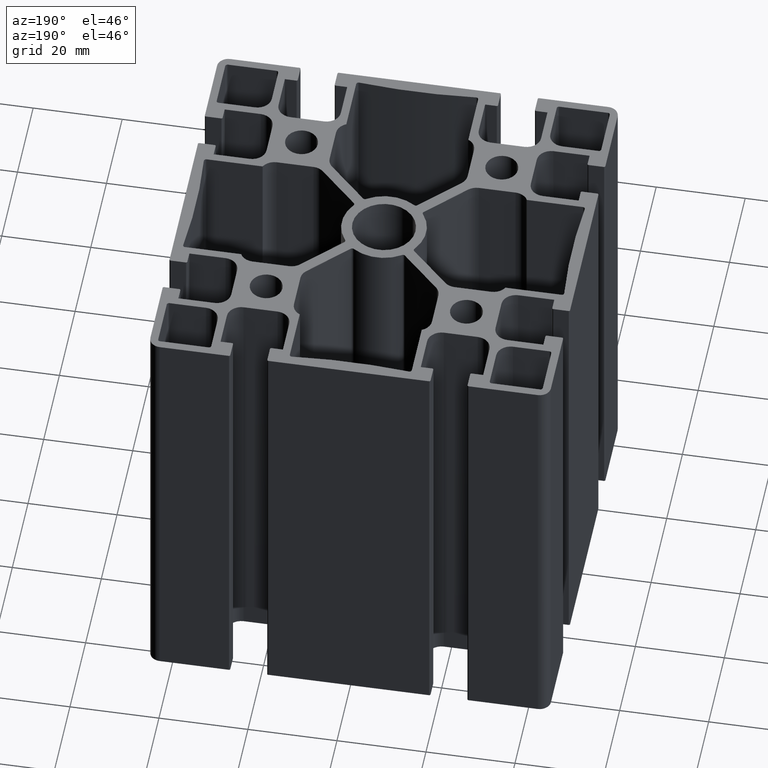
[diagram: clean part render]
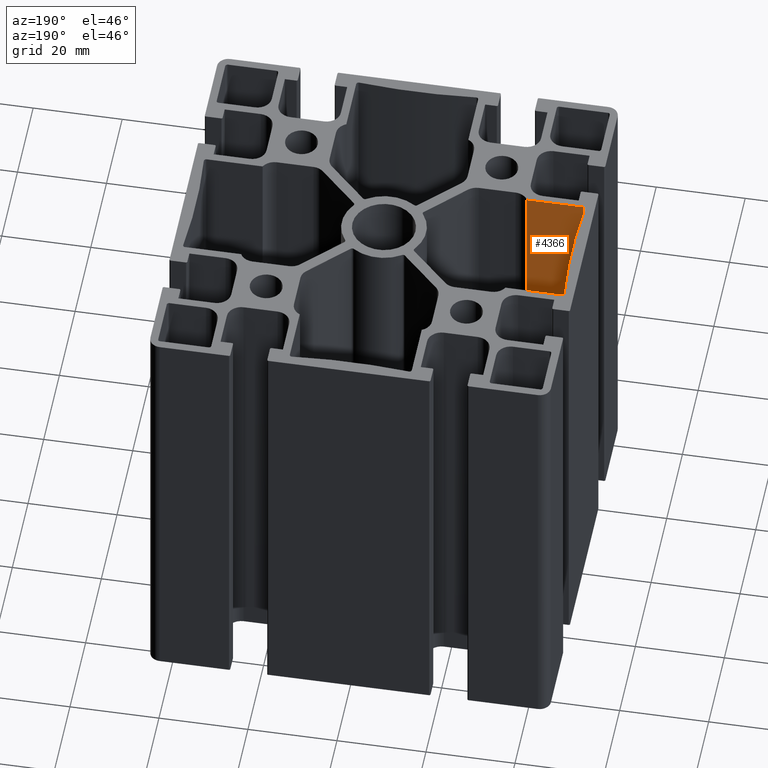
[diagram: same view with one face highlighted and labeled with its STEP entity id]
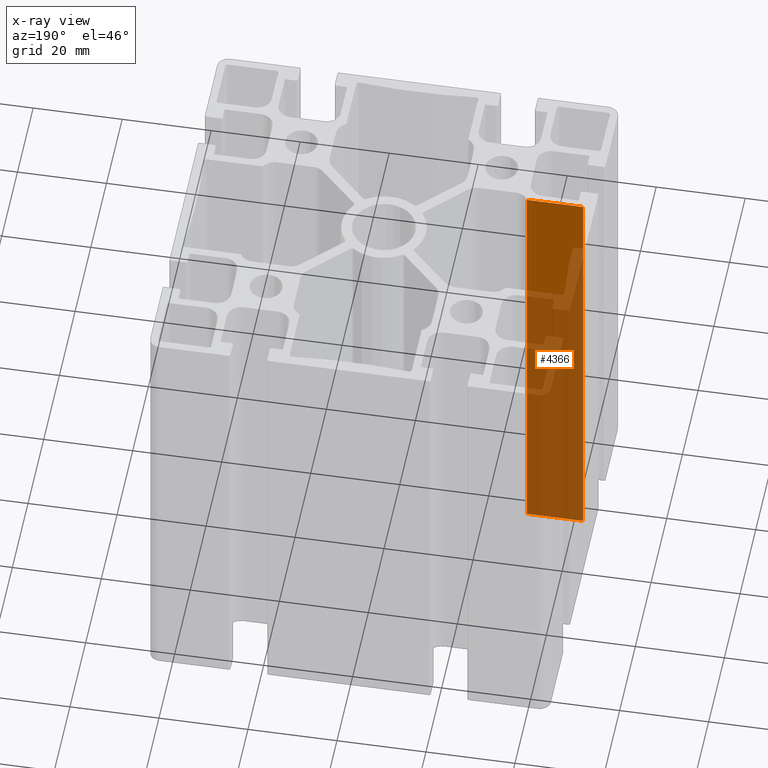
[diagram: x-ray of the same camera — body ghosted, the highlighted face saturated]
A machine part, auxiliary view. The second image highlights one B-rep face of the part: STEP entity #4366.
The next image is the same camera in x-ray: the body ghosted, the highlighted face saturated — about 75% of this face is hidden behind the body in this view.
In plain terms, the highlighted planar face has unit normal (-0, -1, 0).
Its self-contained STEP definition (entity closure, byte-faithful):
#100=PLANE('',#4711);
#270=FACE_OUTER_BOUND('',#498,.T.);
#498=EDGE_LOOP('',(#3269,#3270,#3271,#3272));
#634=LINE('',#6267,#1066);
#859=LINE('',#6967,#1291);
#860=LINE('',#6969,#1292);
#861=LINE('',#6970,#1293);
#1066=VECTOR('',#4935,100.);
#1291=VECTOR('',#5624,12.6020761195444);
#1292=VECTOR('',#5625,12.6020761195444);
#1293=VECTOR('',#5626,100.);
#1723=VERTEX_POINT('',#6260);
#1726=VERTEX_POINT('',#6265);
#1969=VERTEX_POINT('',#6966);
#1970=VERTEX_POINT('',#6968);
#2168=EDGE_CURVE('',#1723,#1726,#634,.T.);
#2511=EDGE_CURVE('',#1969,#1723,#859,.T.);
#2512=EDGE_CURVE('',#1970,#1726,#860,.T.);
#2513=EDGE_CURVE('',#1969,#1970,#861,.T.);
#3269=ORIENTED_EDGE('',*,*,#2511,.T.);
#3270=ORIENTED_EDGE('',*,*,#2168,.T.);
#3271=ORIENTED_EDGE('',*,*,#2512,.F.);
#3272=ORIENTED_EDGE('',*,*,#2513,.F.);
#4366=ADVANCED_FACE('',(#270),#100,.F.);
#4711=AXIS2_PLACEMENT_3D('',#6965,#5622,#5623);
#4935=DIRECTION('',(0.,0.,-1.));
#5622=DIRECTION('center_axis',(-1.76196844725184E-16,-1.,0.));
#5623=DIRECTION('ref_axis',(1.,-1.77635683940025E-16,0.));
#5624=DIRECTION('',(1.,-1.76196844725184E-16,0.));
#5625=DIRECTION('',(1.,-1.76196844725184E-16,0.));
#5626=DIRECTION('',(0.,0.,-1.));
#6260=CARTESIAN_POINT('',(-29.7,-13.7,100.));
#6265=CARTESIAN_POINT('',(-29.7,-13.7,0.));
#6267=CARTESIAN_POINT('',(-29.7,-13.7,0.));
#6965=CARTESIAN_POINT('Origin',(-42.3020761195444,-13.7,0.));
#6966=CARTESIAN_POINT('',(-42.3020761195444,-13.7,100.));
#6967=CARTESIAN_POINT('',(-21.1510380597722,-13.7,100.));
#6968=CARTESIAN_POINT('',(-42.3020761195444,-13.7,0.));
#6969=CARTESIAN_POINT('',(-21.1510380597722,-13.7,0.));
#6970=CARTESIAN_POINT('',(-42.3020761195444,-13.7,0.));